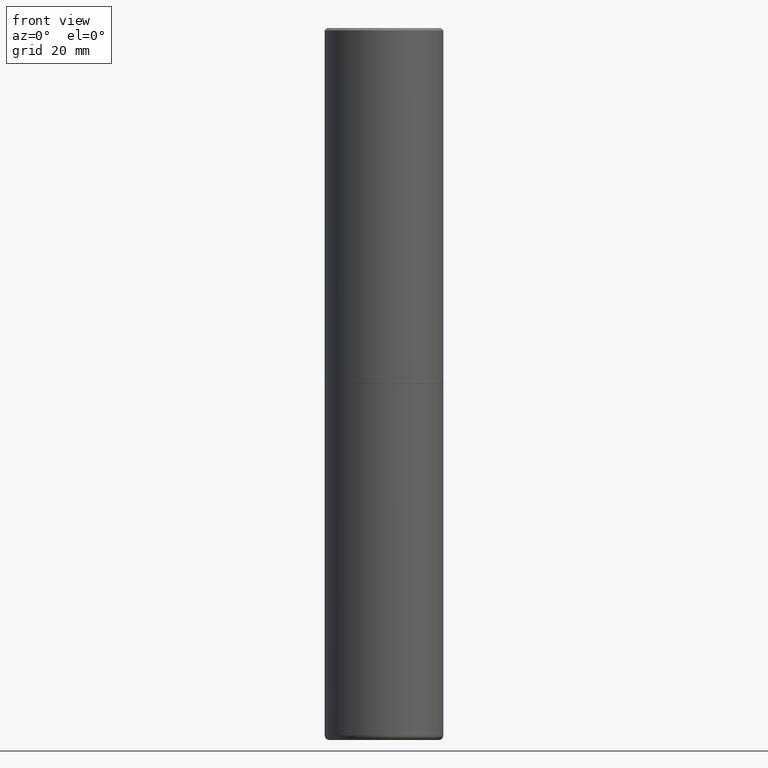
[diagram: clean part render]
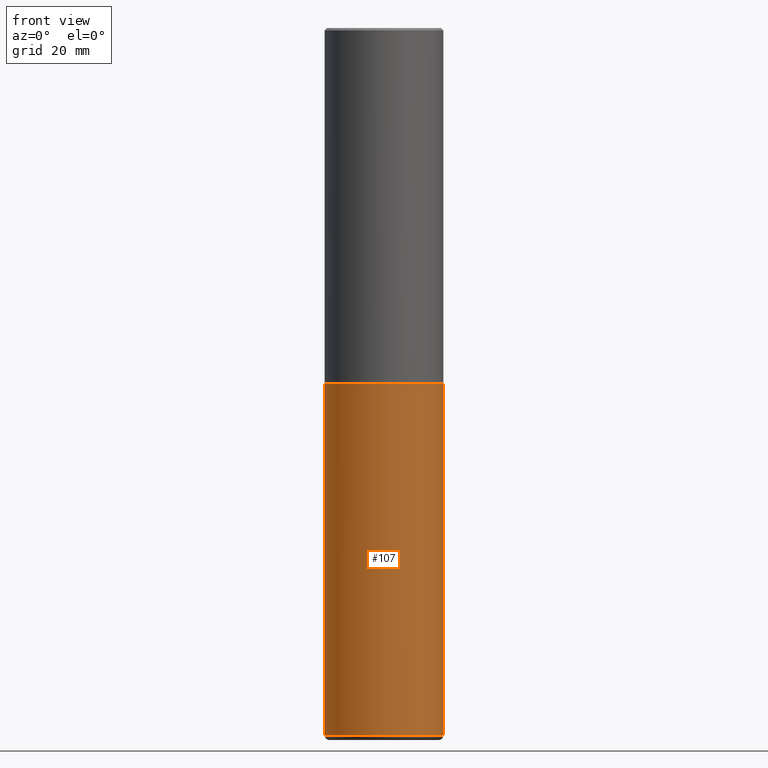
[diagram: same view with one face highlighted and labeled with its STEP entity id]
A machine part, front view. The second image highlights one B-rep face of the part: STEP entity #107.
In plain terms, the highlighted cylindrical surface (partial cylindrical patch) has radius 12.5006 mm, axis along (-0, 0, 1).
Its self-contained STEP definition (entity closure, byte-faithful):
#5 = CIRCLE ( 'NONE', #205, 0.4921499999999999764 ) ;
#6 = CARTESIAN_POINT ( 'NONE',  ( 0.4921499999999999764, -1.374596203102545079E-14, -2.952700000000000102 ) ) ;
#25 = CARTESIAN_POINT ( 'NONE',  ( -0.4921500000000000874, -1.698444260774444222E-14, -5.866100000000000314 ) ) ;
#28 = CARTESIAN_POINT ( 'NONE',  ( 0.000000000000000000, 0.000000000000000000, 0.000000000000000000 ) ) ;
#33 = LINE ( 'NONE', #259, #392 ) ;
#78 = FACE_OUTER_BOUND ( 'NONE', #312, .T. ) ;
#85 = CARTESIAN_POINT ( 'NONE',  ( -0.4921499999999999764, -1.189840174145163414E-14, -2.952700000000000102 ) ) ;
#87 = VERTEX_POINT ( 'NONE', #85 ) ;
#90 = ORIENTED_EDGE ( 'NONE', *, *, #247, .T. ) ;
#92 = EDGE_CURVE ( 'NONE', #87, #338, #339, .T. ) ;
#97 = DIRECTION ( 'NONE',  ( 1.000000000000000000, -6.982962677686265922E-15, 0.000000000000000000 ) ) ;
#104 = DIRECTION ( 'NONE',  ( -2.445468806185136877E-29, 3.491481338843145188E-15, 1.000000000000000000 ) ) ;
#105 = DIRECTION ( 'NONE',  ( 1.000000000000000000, -6.982962677686265922E-15, 0.000000000000000000 ) ) ;
#107 = ADVANCED_FACE ( 'NONE', ( #78 ), #157, .T. ) ;
#128 = VECTOR ( 'NONE', #380, 39.37007874015748143 ) ;
#131 = DIRECTION ( 'NONE',  ( -2.445468806185136597E-29, 3.491481338843145583E-15, 1.000000000000000000 ) ) ;
#157 = CYLINDRICAL_SURFACE ( 'NONE', #253, 0.4921499999999999764 ) ;
#162 = CARTESIAN_POINT ( 'NONE',  ( 0.4921500000000000874, -2.391804376361107326E-14, -5.866100000000000314 ) ) ;
#163 = LINE ( 'NONE', #374, #128 ) ;
#168 = EDGE_CURVE ( 'NONE', #170, #87, #163, .T. ) ;
#170 = VERTEX_POINT ( 'NONE', #25 ) ;
#188 = VERTEX_POINT ( 'NONE', #162 ) ;
#205 = AXIS2_PLACEMENT_3D ( 'NONE', #261, #131, #97 ) ;
#209 = AXIS2_PLACEMENT_3D ( 'NONE', #401, #301, #105 ) ;
#213 = ORIENTED_EDGE ( 'NONE', *, *, #239, .T. ) ;
#216 = ORIENTED_EDGE ( 'NONE', *, *, #92, .F. ) ;
#230 = ORIENTED_EDGE ( 'NONE', *, *, #168, .F. ) ;
#239 = EDGE_CURVE ( 'NONE', #188, #338, #33, .T. ) ;
#247 = EDGE_CURVE ( 'NONE', #170, #188, #5, .T. ) ;
#253 = AXIS2_PLACEMENT_3D ( 'NONE', #28, #282, #329 ) ;
#259 = CARTESIAN_POINT ( 'NONE',  ( 0.4921499999999999764, -3.436665081823295777E-15, 2.399810400207969603E-29 ) ) ;
#261 = CARTESIAN_POINT ( 'NONE',  ( 1.434536456396262923E-28, -2.048137868178777591E-14, -5.866100000000000314 ) ) ;
#282 = DIRECTION ( 'NONE',  ( -2.445468806185136597E-29, 3.491481338843145583E-15, 1.000000000000000000 ) ) ;
#301 = DIRECTION ( 'NONE',  ( -2.445468806185136597E-29, 3.491481338843145583E-15, 1.000000000000000000 ) ) ;
#312 = EDGE_LOOP ( 'NONE', ( #230, #90, #213, #216 ) ) ;
#329 = DIRECTION ( 'NONE',  ( 1.000000000000000000, -6.982962677686265922E-15, 4.876176775795935793E-29 ) ) ;
#338 = VERTEX_POINT ( 'NONE', #6 ) ;
#339 = CIRCLE ( 'NONE', #209, 0.4921499999999999764 ) ;
#374 = CARTESIAN_POINT ( 'NONE',  ( -0.4921499999999999764, 3.496936074043332897E-15, -2.420853904668951509E-29 ) ) ;
#380 = DIRECTION ( 'NONE',  ( -2.445468806185136877E-29, 3.491481338843145188E-15, 1.000000000000000000 ) ) ;
#392 = VECTOR ( 'NONE', #104, 39.37007874015748143 ) ;
#401 = CARTESIAN_POINT ( 'NONE',  ( 7.220735744022852519E-29, -1.030929694920215502E-14, -2.952700000000000102 ) ) ;